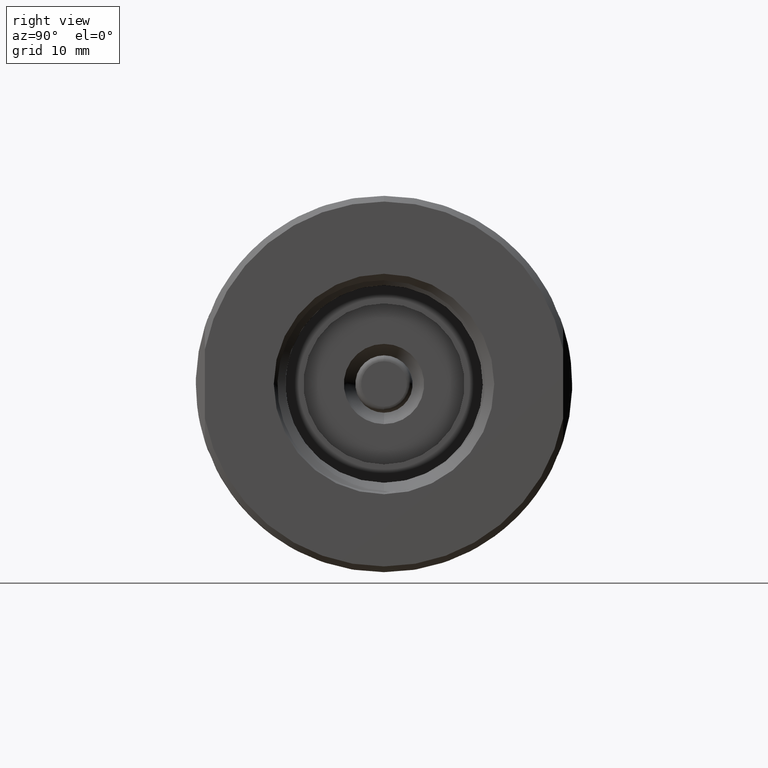
[diagram: clean part render]
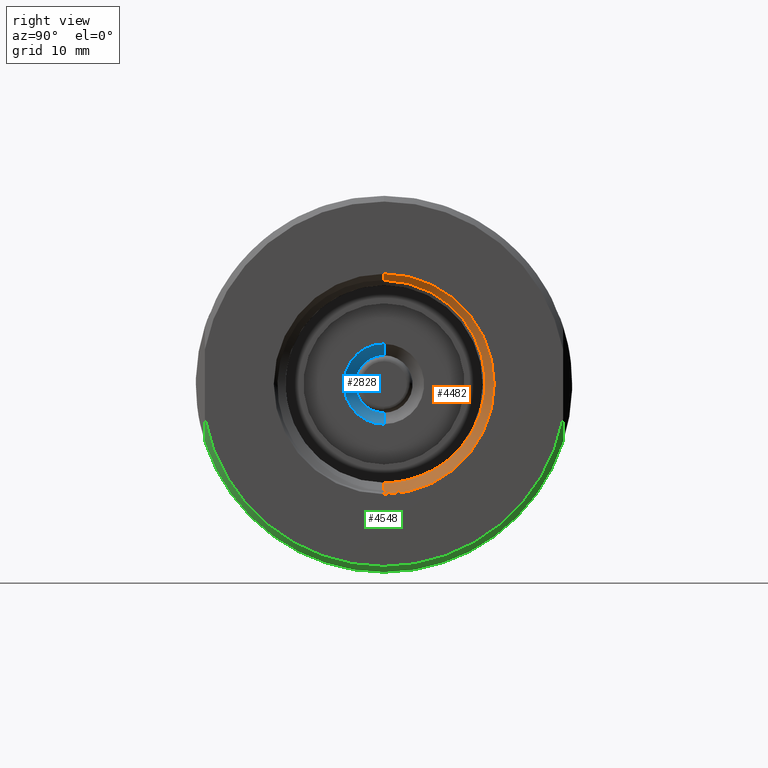
[diagram: same view with three faces highlighted in distinct colors, each labeled with its STEP entity id]
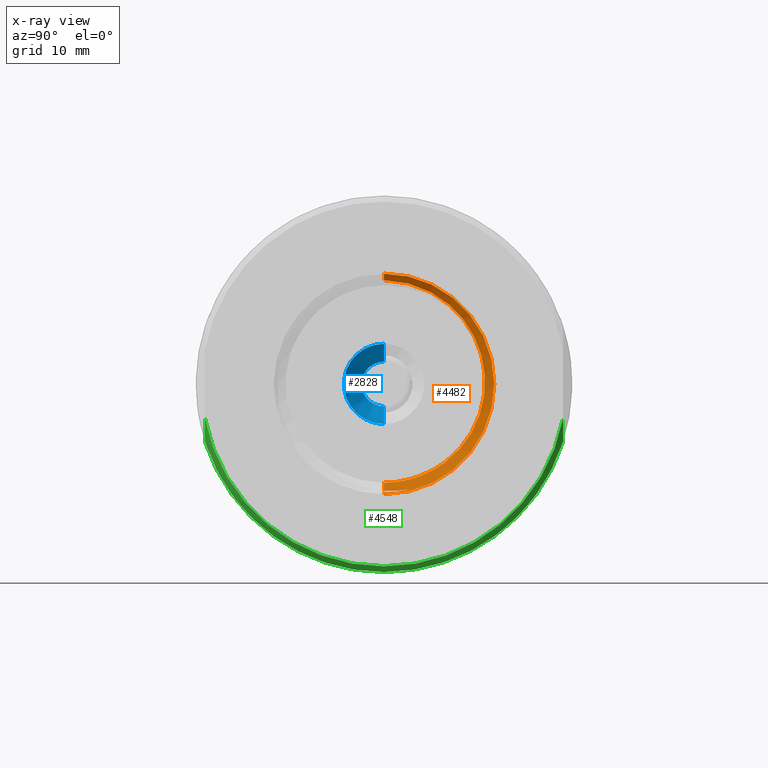
[diagram: x-ray of the same camera — body ghosted, the three highlighted faces saturated]
A machine part, right view with three faces highlighted in distinct colors.
The next image is the same camera in x-ray (body ghosted, the three faces saturated) — at least one of them is partly hidden behind the body in this view.
Their STEP definitions:

[orange] entity #4482 — the highlighted conical surface has half-angle 45 deg.
#44 = CARTESIAN_POINT ( 'NONE',  ( 1.304382642815901328, 0.06184354998518463986, -0.3716189419748357481 ) ) ;
#47 = CARTESIAN_POINT ( 'NONE',  ( 1.287077951368955642, 0.1569011873643701427, 0.3236528847657136332 ) ) ;
#167 = CARTESIAN_POINT ( 'NONE',  ( 1.285279556418134073, 0.2401296560682154579, 0.2653847520005125915 ) ) ;
#342 = CARTESIAN_POINT ( 'NONE',  ( 1.277308321455000728, 0.3176201860635732288, -0.1458059470798475643 ) ) ;
#554 = ORIENTED_EDGE ( 'NONE', *, *, #8855, .T. ) ;
#822 = CARTESIAN_POINT ( 'NONE',  ( 1.280577446555144938, 0.3517372571203437048, 0.03199722948202590039 ) ) ;
#872 = LINE ( 'NONE', #10712, #8130 ) ;
#882 = CARTESIAN_POINT ( 'NONE',  ( 1.306329117187498445, 0.09245632877379253434, -0.3668901671180790358 ) ) ;
#884 = CARTESIAN_POINT ( 'NONE',  ( 1.288542025941997515, 0.08046324323461337413, 0.3520627707701351472 ) ) ;
#947 = CARTESIAN_POINT ( 'NONE',  ( 1.282784095741233754, 0.3221861074435572458, 0.1499996002710555221 ) ) ;
#1058 = CARTESIAN_POINT ( 'NONE',  ( 1.287443394697124655, 0.1385489153749330793, 0.3323353530213062346 ) ) ;
#1183 = CARTESIAN_POINT ( 'NONE',  ( 1.277685603457377139, 0.3259258135036573467, -0.1271930119882950239 ) ) ;
#1438 = EDGE_CURVE ( 'NONE', #6696, #6943, #872, .T. ) ;
#1517 = EDGE_CURVE ( 'NONE', #8276, #3355, #8032, .T. ) ;
#1681 = VECTOR ( 'NONE', #2907, 39.37007874015748854 ) ;
#1690 = ORIENTED_EDGE ( 'NONE', *, *, #10036, .F. ) ;
#1900 = CARTESIAN_POINT ( 'NONE',  ( 1.312500000000000222, 4.709149644846310570E-17, 0.3845312500000003242 ) ) ;
#2015 = CARTESIAN_POINT ( 'NONE',  ( 1.272499999999999964, 0.1269585459712130604, -0.3202862935428833491 ) ) ;
#2251 = CARTESIAN_POINT ( 'NONE',  ( 1.312500000000000222, 0.0000000000000000000, 0.0000000000000000000 ) ) ;
#2309 = DIRECTION ( 'NONE',  ( -1.000000000000000000, -0.0000000000000000000, -0.0000000000000000000 ) ) ;
#2463 = EDGE_CURVE ( 'NONE', #9712, #8276, #6336, .T. ) ;
#2515 = EDGE_CURVE ( 'NONE', #7520, #9712, #5417, .T. ) ;
#2595 = B_SPLINE_CURVE_WITH_KNOTS ( 'NONE', 3,
 ( #10840, #3732, #10000, #44, #10956, #3556 ),
 .UNSPECIFIED., .F., .F.,
 ( 4, 2, 4 ),
 ( 0.01093648437375131267, 0.01211465202260034006, 0.01329281967144936745 ),
 .UNSPECIFIED. ) ;
#2606 = CARTESIAN_POINT ( 'NONE',  ( 1.282229728432893401, 0.3328988366051651715, 0.1215798709144235712 ) ) ;
#2851 = CARTESIAN_POINT ( 'NONE',  ( 1.289595712018401619, 0.02049901501150600686, 0.3616269620184022204 ) ) ;
#2906 = CARTESIAN_POINT ( 'NONE',  ( 1.275636831506381075, 0.2675798709584311652, -0.2222088372663019173 ) ) ;
#2907 = DIRECTION ( 'NONE',  ( 0.7071067811865516806, 8.659560562354879857E-17, 0.7071067811865431318 ) ) ;
#2982 = VECTOR ( 'NONE', #7918, 39.37007874015748854 ) ;
#3026 = CARTESIAN_POINT ( 'NONE',  ( 1.273270186898506351, 0.1647227870886077139, -0.3041549577535002657 ) ) ;
#3027 = CARTESIAN_POINT ( 'NONE',  ( 1.306329117187500000, 0.06225113146227941041, -0.3745018773888929009 ) ) ;
#3135 = CARTESIAN_POINT ( 'NONE',  ( 1.275100914353762827, 0.2466448716032853816, -0.2444814761463088848 ) ) ;
#3355 = VERTEX_POINT ( 'NONE', #5848 ) ;
#3556 = CARTESIAN_POINT ( 'NONE',  ( 1.306329117187498445, 0.09245632877379253434, -0.3668901671180790358 ) ) ;
#3673 = CARTESIAN_POINT ( 'NONE',  ( 1.280055096698166528, 0.3522281482293175281, 0.001622987952749292652 ) ) ;
#3732 = CARTESIAN_POINT ( 'NONE',  ( 1.301519632932547577, 0.01541558026784879513, -0.3735508829325477897 ) ) ;
#3760 = ORIENTED_EDGE ( 'NONE', *, *, #2515, .T. ) ;
#3795 = CARTESIAN_POINT ( 'NONE',  ( 1.284249674485615778, 0.2807742037666038915, 0.2202534804113193134 ) ) ;
#3851 = CARTESIAN_POINT ( 'NONE',  ( 1.278432984245897464, 0.3395704241186642824, -0.08903494850290376295 ) ) ;
#3892 = CONICAL_SURFACE ( 'NONE', #8482, 0.3845312500000003242, 0.7853981633974422838 ) ;
#4264 = VERTEX_POINT ( 'NONE', #1900 ) ;
#4353 = VERTEX_POINT ( 'NONE', #882 ) ;
#4440 = CARTESIAN_POINT ( 'NONE',  ( 1.279884145309096777, 0.3519595648555763345, -0.008517391885634318510 ) ) ;
#4482 = ADVANCED_FACE ( 'NONE', ( #5989 ), #3892, .F. ) ;
#4508 = CARTESIAN_POINT ( 'NONE',  ( 1.279349786774983677, 0.3493540093110704126, -0.03905227375530324202 ) ) ;
#4569 = CARTESIAN_POINT ( 'NONE',  ( 1.280935760731527928, 0.3496883693061695331, 0.05218449910440883799 ) ) ;
#5333 = CARTESIAN_POINT ( 'NONE',  ( 1.281488651837447312, 0.3439426771052971898, 0.08236882048632643283 ) ) ;
#5346 = CARTESIAN_POINT ( 'NONE',  ( 1.289934301395927907, 0.0000000000000000000, 0.3619655513959281756 ) ) ;
#5393 = CARTESIAN_POINT ( 'NONE',  ( 1.286352484540092878, 0.1919265343641341215, 0.3033362169203421277 ) ) ;
#5417 = B_SPLINE_CURVE_WITH_KNOTS ( 'NONE', 3,
 ( #11025, #2851, #9119, #884, #10130, #1058, #47, #5393, #5519, #167, #8991, #3795, #9053, #10781, #947, #2606, #8228, #9887, #5333, #4569, #822, #3673, #4440, #8172, #4508, #11812, #3851, #7680, #1183, #342, #10423, #11199, #6714, #2906, #10362, #3135, #10247, #5813, #9471, #3026, #5879, #2015 ),
 .UNSPECIFIED., .F., .F.,
 ( 4, 2, 2, 2, 2, 2, 2, 2, 2, 2, 2, 2, 2, 2, 2, 2, 2, 2, 2, 2, 4 ),
 ( 0.02455092494101071901, 0.02610590275252831771, 0.02766088056404591641, 0.02921585837556351511, 0.03077083618708111382, 0.03232581399859871252, 0.03388079181011630775, 0.03543576962163390992, 0.03621325852739271101, 0.03699074743315150515, 0.03854572524466910732, 0.03932321415042790841, 0.04010070305618670949, 0.04165568086770430473, 0.04243316977346310581, 0.04321065867922190690, 0.04476563649073950213, 0.04554312539649830321, 0.04632061430225710430, 0.04787559211377470647, 0.04943056992529230170 ),
 .UNSPECIFIED. ) ;
#5519 = CARTESIAN_POINT ( 'NONE',  ( 1.285991400804908480, 0.2086464212371900440, 0.2916628110145719766 ) ) ;
#5727 = CARTESIAN_POINT ( 'NONE',  ( 1.272499999999999964, 0.0000000000000000000, -0.3445312500000003997 ) ) ;
#5813 = CARTESIAN_POINT ( 'NONE',  ( 1.274385850623438010, 0.2160057076829934863, -0.2715927350443603228 ) ) ;
#5814 = DIRECTION ( 'NONE',  ( 0.0000000000000000000, 0.0000000000000000000, 1.000000000000000000 ) ) ;
#5848 = CARTESIAN_POINT ( 'NONE',  ( 1.300596552073818080, 4.563374450830144362E-17, -0.3726278020738178487 ) ) ;
#5879 = CARTESIAN_POINT ( 'NONE',  ( 1.272885770179390752, 0.1461959647625226399, -0.3130757294868330431 ) ) ;
#5989 = FACE_OUTER_BOUND ( 'NONE', #7777, .T. ) ;
#6238 = DIRECTION ( 'NONE',  ( 0.0000000000000000000, 0.0000000000000000000, 1.000000000000000000 ) ) ;
#6248 = CARTESIAN_POINT ( 'NONE',  ( 1.306329117187500222, 4.633578126003893285E-17, -0.3783603671875002128 ) ) ;
#6336 = CIRCLE ( 'NONE', #6722, 0.3445312500000003997 ) ;
#6638 = B_SPLINE_CURVE_WITH_KNOTS ( 'NONE', 3,
 ( #7562, #3027, #9586, #8404 ),
 .UNSPECIFIED., .F., .F.,
 ( 4, 4 ),
 ( 2.117490088377129711E-15, 0.002373086526508388916 ),
 .UNSPECIFIED. ) ;
#6696 = VERTEX_POINT ( 'NONE', #6248 ) ;
#6714 = CARTESIAN_POINT ( 'NONE',  ( 1.276181650256496214, 0.2867388275639588535, -0.1986044004660146856 ) ) ;
#6722 = AXIS2_PLACEMENT_3D ( 'NONE', #10959, #9946, #6238 ) ;
#6943 = VERTEX_POINT ( 'NONE', #10946 ) ;
#7192 = CARTESIAN_POINT ( 'NONE',  ( 1.312500000000000222, 0.0000000000000000000, -0.3845312500000003242 ) ) ;
#7398 = CIRCLE ( 'NONE', #9858, 0.3845312500000003242 ) ;
#7520 = VERTEX_POINT ( 'NONE', #5346 ) ;
#7562 = CARTESIAN_POINT ( 'NONE',  ( 1.306329117187498445, 0.09245632877379253434, -0.3668901671180790358 ) ) ;
#7680 = CARTESIAN_POINT ( 'NONE',  ( 1.277873208228788471, 0.3296514127123258420, -0.1177523029987971731 ) ) ;
#7777 = EDGE_LOOP ( 'NONE', ( #8426, #3760, #10122, #9305, #554, #9045, #9443, #1690 ) ) ;
#7918 = DIRECTION ( 'NONE',  ( 0.7071067811865516806, 0.0000000000000000000, -0.7071067811865431318 ) ) ;
#8032 = LINE ( 'NONE', #7192, #2982 ) ;
#8130 = VECTOR ( 'NONE', #11734, 39.37007874015748854 ) ;
#8172 = CARTESIAN_POINT ( 'NONE',  ( 1.279530946357690713, 0.3505259330648293203, -0.02883026117080057793 ) ) ;
#8173 = LINE ( 'NONE', #11080, #1681 ) ;
#8228 = CARTESIAN_POINT ( 'NONE',  ( 1.282044793446151631, 0.3360668240152973052, 0.1119482197739550544 ) ) ;
#8276 = VERTEX_POINT ( 'NONE', #5727 ) ;
#8404 = CARTESIAN_POINT ( 'NONE',  ( 1.306329117187500222, 4.633578126003893285E-17, -0.3783603671875002128 ) ) ;
#8426 = ORIENTED_EDGE ( 'NONE', *, *, #9896, .F. ) ;
#8482 = AXIS2_PLACEMENT_3D ( 'NONE', #2251, #11502, #10481 ) ;
#8523 = CARTESIAN_POINT ( 'NONE',  ( 1.312500000000000222, 0.0000000000000000000, 0.0000000000000000000 ) ) ;
#8855 = EDGE_CURVE ( 'NONE', #3355, #4353, #2595, .T. ) ;
#8991 = CARTESIAN_POINT ( 'NONE',  ( 1.284944759342732556, 0.2545453349184113589, 0.2510939977364685105 ) ) ;
#9045 = ORIENTED_EDGE ( 'NONE', *, *, #9966, .T. ) ;
#9053 = CARTESIAN_POINT ( 'NONE',  ( 1.283889961076115638, 0.2926266024515022379, 0.2036411749115093206 ) ) ;
#9119 = CARTESIAN_POINT ( 'NONE',  ( 1.289249488695774604, 0.04068672300993403379, 0.3595522263509309813 ) ) ;
#9305 = ORIENTED_EDGE ( 'NONE', *, *, #1517, .T. ) ;
#9443 = ORIENTED_EDGE ( 'NONE', *, *, #1438, .T. ) ;
#9471 = CARTESIAN_POINT ( 'NONE',  ( 1.274019045037210418, 0.1995677568363079801, -0.2834330074546084766 ) ) ;
#9586 = CARTESIAN_POINT ( 'NONE',  ( 1.306329117187500000, 0.03112291469431988783, -0.3783603671875002128 ) ) ;
#9712 = VERTEX_POINT ( 'NONE', #10378 ) ;
#9858 = AXIS2_PLACEMENT_3D ( 'NONE', #8523, #2309, #5814 ) ;
#9887 = CARTESIAN_POINT ( 'NONE',  ( 1.281674633214922032, 0.3415850148446608059, 0.09236340739831321034 ) ) ;
#9896 = EDGE_CURVE ( 'NONE', #7520, #4264, #8173, .T. ) ;
#9946 = DIRECTION ( 'NONE',  ( -1.000000000000000000, -0.0000000000000000000, -0.0000000000000000000 ) ) ;
#9966 = EDGE_CURVE ( 'NONE', #4353, #6696, #6638, .T. ) ;
#10000 = CARTESIAN_POINT ( 'NONE',  ( 1.302469797975293941, 0.03099932599612178000, -0.3735343635153598463 ) ) ;
#10036 = EDGE_CURVE ( 'NONE', #4264, #6943, #7398, .T. ) ;
#10122 = ORIENTED_EDGE ( 'NONE', *, *, #2463, .T. ) ;
#10130 = CARTESIAN_POINT ( 'NONE',  ( 1.288179903020098216, 0.1000982435388808600, 0.3466309060654319540 ) ) ;
#10247 = CARTESIAN_POINT ( 'NONE',  ( 1.274924647590123028, 0.2391561038309883147, -0.2515687199196058876 ) ) ;
#10362 = CARTESIAN_POINT ( 'NONE',  ( 1.275456981108744170, 0.2608414048871526836, -0.2298129186828532788 ) ) ;
#10378 = CARTESIAN_POINT ( 'NONE',  ( 1.272499999999999964, 0.1269585459712130604, -0.3202862935428833491 ) ) ;
#10423 = CARTESIAN_POINT ( 'NONE',  ( 1.277117704470432713, 0.3130137676441808181, -0.1550219200804668906 ) ) ;
#10481 = DIRECTION ( 'NONE',  ( 0.0000000000000000000, 0.0000000000000000000, -1.000000000000000000 ) ) ;
#10712 = CARTESIAN_POINT ( 'NONE',  ( 1.312500000000000222, 0.0000000000000000000, -0.3845312500000003242 ) ) ;
#10781 = CARTESIAN_POINT ( 'NONE',  ( 1.283153087215328059, 0.3134417992241896878, 0.1683160716923826350 ) ) ;
#10840 = CARTESIAN_POINT ( 'NONE',  ( 1.300596552073818080, 4.563374450830144362E-17, -0.3726278020738178487 ) ) ;
#10946 = CARTESIAN_POINT ( 'NONE',  ( 1.312500000000000222, 0.0000000000000000000, -0.3845312500000003242 ) ) ;
#10956 = CARTESIAN_POINT ( 'NONE',  ( 1.305350354312290628, 0.07718889598561119725, -0.3697281982180168347 ) ) ;
#10959 = CARTESIAN_POINT ( 'NONE',  ( 1.272499999999999964, 0.0000000000000000000, 0.0000000000000000000 ) ) ;
#11025 = CARTESIAN_POINT ( 'NONE',  ( 1.289934301395927907, 0.0000000000000000000, 0.3619655513959281756 ) ) ;
#11080 = CARTESIAN_POINT ( 'NONE',  ( 1.312500000000000222, 4.709149644846310570E-17, 0.3845312500000003242 ) ) ;
#11199 = CARTESIAN_POINT ( 'NONE',  ( 1.276551840293477014, 0.2981109147186140063, -0.1818178800172128018 ) ) ;
#11502 = DIRECTION ( 'NONE',  ( 1.000000000000000000, 0.0000000000000000000, 0.0000000000000000000 ) ) ;
#11734 = DIRECTION ( 'NONE',  ( 0.7071067811865516806, 0.0000000000000000000, -0.7071067811865431318 ) ) ;
#11812 = CARTESIAN_POINT ( 'NONE',  ( 1.278802133679145303, 0.3445157304189890857, -0.06936611713288864944 ) ) ;

[blue] entity #2828 — the highlighted conical surface has half-angle 45 deg.
#173 = DIRECTION ( 'NONE',  ( 0.7071067811865461294, 0.0000000000000000000, -0.7071067811865489050 ) ) ;
#298 = AXIS2_PLACEMENT_3D ( 'NONE', #6951, #5202, #1539 ) ;
#340 = EDGE_CURVE ( 'NONE', #9020, #3553, #4678, .T. ) ;
#512 = CARTESIAN_POINT ( 'NONE',  ( 0.3755000000000002780, 9.552245033349355435E-18, -0.07799999999999999989 ) ) ;
#953 = CARTESIAN_POINT ( 'NONE',  ( 0.3755000000000002780, 0.0000000000000000000, -0.07799999999999999989 ) ) ;
#1539 = DIRECTION ( 'NONE',  ( 0.0000000000000000000, 0.0000000000000000000, 1.000000000000000000 ) ) ;
#1615 = DIRECTION ( 'NONE',  ( 0.7071067811865461294, 8.659560562354950115E-17, 0.7071067811865489050 ) ) ;
#2524 = ORIENTED_EDGE ( 'NONE', *, *, #5876, .T. ) ;
#2589 = FACE_OUTER_BOUND ( 'NONE', #2629, .T. ) ;
#2629 = EDGE_LOOP ( 'NONE', ( #9863, #2524, #4374, #7664 ) ) ;
#2828 = ADVANCED_FACE ( 'NONE', ( #2589 ), #2928, .F. ) ;
#2928 = CONICAL_SURFACE ( 'NONE', #9404, 0.07799999999999999989, 0.7853981633974502774 ) ;
#3553 = VERTEX_POINT ( 'NONE', #3697 ) ;
#3697 = CARTESIAN_POINT ( 'NONE',  ( 0.3755000000000002780, 0.0000000000000000000, 0.07799999999999999989 ) ) ;
#4283 = CARTESIAN_POINT ( 'NONE',  ( 0.4375000000000000555, 1.714505518806294700E-17, 0.1400000000000000133 ) ) ;
#4374 = ORIENTED_EDGE ( 'NONE', *, *, #4553, .F. ) ;
#4481 = AXIS2_PLACEMENT_3D ( 'NONE', #11692, #11757, #10137 ) ;
#4553 = EDGE_CURVE ( 'NONE', #4636, #6757, #9257, .T. ) ;
#4636 = VERTEX_POINT ( 'NONE', #11054 ) ;
#4678 = CIRCLE ( 'NONE', #4481, 0.07799999999999999989 ) ;
#5202 = DIRECTION ( 'NONE',  ( -1.000000000000000000, -0.0000000000000000000, -0.0000000000000000000 ) ) ;
#5288 = VECTOR ( 'NONE', #173, 39.37007874015748143 ) ;
#5321 = CARTESIAN_POINT ( 'NONE',  ( 0.3755000000000002780, 0.0000000000000000000, 0.0000000000000000000 ) ) ;
#5876 = EDGE_CURVE ( 'NONE', #3553, #6757, #10848, .T. ) ;
#6757 = VERTEX_POINT ( 'NONE', #4283 ) ;
#6815 = VECTOR ( 'NONE', #1615, 39.37007874015748143 ) ;
#6951 = CARTESIAN_POINT ( 'NONE',  ( 0.4375000000000000555, 0.0000000000000000000, 0.0000000000000000000 ) ) ;
#7664 = ORIENTED_EDGE ( 'NONE', *, *, #10838, .F. ) ;
#7880 = CARTESIAN_POINT ( 'NONE',  ( 0.3755000000000002780, 9.552245033349355435E-18, 0.07799999999999999989 ) ) ;
#8978 = DIRECTION ( 'NONE',  ( 1.000000000000000000, 0.0000000000000000000, 0.0000000000000000000 ) ) ;
#9020 = VERTEX_POINT ( 'NONE', #512 ) ;
#9257 = CIRCLE ( 'NONE', #298, 0.1400000000000000133 ) ;
#9404 = AXIS2_PLACEMENT_3D ( 'NONE', #5321, #8978, #10827 ) ;
#9863 = ORIENTED_EDGE ( 'NONE', *, *, #340, .T. ) ;
#10137 = DIRECTION ( 'NONE',  ( 0.0000000000000000000, 0.0000000000000000000, 1.000000000000000000 ) ) ;
#10827 = DIRECTION ( 'NONE',  ( 0.0000000000000000000, 0.0000000000000000000, -1.000000000000000000 ) ) ;
#10838 = EDGE_CURVE ( 'NONE', #9020, #4636, #11085, .T. ) ;
#10848 = LINE ( 'NONE', #7880, #6815 ) ;
#11054 = CARTESIAN_POINT ( 'NONE',  ( 0.4375000000000000555, 0.0000000000000000000, -0.1400000000000000133 ) ) ;
#11085 = LINE ( 'NONE', #953, #5288 ) ;
#11692 = CARTESIAN_POINT ( 'NONE',  ( 0.3755000000000002780, 0.0000000000000000000, 0.0000000000000000000 ) ) ;
#11757 = DIRECTION ( 'NONE',  ( -1.000000000000000000, -0.0000000000000000000, -0.0000000000000000000 ) ) ;

[green] entity #4548 — the highlighted conical surface has half-angle 45 deg.
#249 = CARTESIAN_POINT ( 'NONE',  ( 1.312500000000000000, 0.6248000000000000220, -0.1204269488113021841 ) ) ;
#317 = CIRCLE ( 'NONE', #4307, 0.6362999999999999767 ) ;
#528 = CARTESIAN_POINT ( 'NONE',  ( 1.292499999999999982, -0.6248000000000000220, -0.2008846684045352271 ) ) ;
#767 = ORIENTED_EDGE ( 'NONE', *, *, #4203, .F. ) ;
#954 = VERTEX_POINT ( 'NONE', #7268 ) ;
#1028 = CARTESIAN_POINT ( 'NONE',  ( 1.292499999999999982, 0.0000000000000000000, 0.0000000000000000000 ) ) ;
#1207 = DIRECTION ( 'NONE',  ( 0.0000000000000000000, 0.0000000000000000000, 1.000000000000000000 ) ) ;
#1358 = DIRECTION ( 'NONE',  ( 0.0000000000000000000, 0.0000000000000000000, 1.000000000000000000 ) ) ;
#1697 = CIRCLE ( 'NONE', #11607, 0.6562999999999999945 ) ;
#1852 = CIRCLE ( 'NONE', #2229, 0.6562999999999999945 ) ;
#1874 = CARTESIAN_POINT ( 'NONE',  ( 1.300568673813839338, 0.6248000000000000220, -0.1745239178998776175 ) ) ;
#1986 = DIRECTION ( 'NONE',  ( -1.000000000000000000, -0.0000000000000000000, -0.0000000000000000000 ) ) ;
#2229 = AXIS2_PLACEMENT_3D ( 'NONE', #1028, #8372, #1207 ) ;
#2259 = VERTEX_POINT ( 'NONE', #5968 ) ;
#2322 = CARTESIAN_POINT ( 'NONE',  ( 1.307341106394361407, -0.6248000000000000220, -0.1476850005486362583 ) ) ;
#2843 = B_SPLINE_CURVE_WITH_KNOTS ( 'NONE', 3,
 ( #10553, #10612, #2322, #5945 ),
 .UNSPECIFIED., .F., .F.,
 ( 4, 4 ),
 ( 0.03460847523141299953, 0.03670624924004842193 ),
 .UNSPECIFIED. ) ;
#3315 = FACE_OUTER_BOUND ( 'NONE', #3585, .T. ) ;
#3321 = DIRECTION ( 'NONE',  ( -1.000000000000000000, -0.0000000000000000000, -0.0000000000000000000 ) ) ;
#3517 = CARTESIAN_POINT ( 'NONE',  ( 1.292499999999999982, 8.037356942804079914E-17, -0.6562999999999999945 ) ) ;
#3546 = DIRECTION ( 'NONE',  ( 0.0000000000000000000, 0.0000000000000000000, 1.000000000000000000 ) ) ;
#3585 = EDGE_LOOP ( 'NONE', ( #11782, #5541, #767, #4591, #9726 ) ) ;
#3649 = CARTESIAN_POINT ( 'NONE',  ( 1.292499999999999982, 0.6248000000000000220, -0.2008846684045352826 ) ) ;
#3722 = AXIS2_PLACEMENT_3D ( 'NONE', #8689, #7802, #1358 ) ;
#4094 = CONICAL_SURFACE ( 'NONE', #3722, 0.6562999999999999945, 0.7853981633974482790 ) ;
#4157 = VERTEX_POINT ( 'NONE', #528 ) ;
#4203 = EDGE_CURVE ( 'NONE', #4157, #954, #2843, .T. ) ;
#4307 = AXIS2_PLACEMENT_3D ( 'NONE', #11230, #1986, #10331 ) ;
#4548 = ADVANCED_FACE ( 'NONE', ( #3315 ), #4094, .T. ) ;
#4591 = ORIENTED_EDGE ( 'NONE', *, *, #11071, .F. ) ;
#5541 = ORIENTED_EDGE ( 'NONE', *, *, #7343, .T. ) ;
#5945 = CARTESIAN_POINT ( 'NONE',  ( 1.312500000000000000, -0.6248000000000000220, -0.1204269488113022119 ) ) ;
#5968 = CARTESIAN_POINT ( 'NONE',  ( 1.312500000000000000, 0.6248000000000000220, -0.1204269488113021841 ) ) ;
#6333 = VERTEX_POINT ( 'NONE', #3517 ) ;
#6444 = B_SPLINE_CURVE_WITH_KNOTS ( 'NONE', 3,
 ( #249, #8253, #1874, #3649 ),
 .UNSPECIFIED., .F., .F.,
 ( 4, 4 ),
 ( 0.04285482118790596290, 0.04496566221112779232 ),
 .UNSPECIFIED. ) ;
#7074 = CARTESIAN_POINT ( 'NONE',  ( 1.292499999999999982, 0.0000000000000000000, 0.0000000000000000000 ) ) ;
#7194 = EDGE_CURVE ( 'NONE', #7868, #6333, #1852, .T. ) ;
#7268 = CARTESIAN_POINT ( 'NONE',  ( 1.312500000000000000, -0.6248000000000000220, -0.1204269488113022119 ) ) ;
#7343 = EDGE_CURVE ( 'NONE', #2259, #954, #317, .T. ) ;
#7802 = DIRECTION ( 'NONE',  ( -1.000000000000000000, -0.0000000000000000000, -0.0000000000000000000 ) ) ;
#7868 = VERTEX_POINT ( 'NONE', #10126 ) ;
#8253 = CARTESIAN_POINT ( 'NONE',  ( 1.307331434661144653, 0.6248000000000000220, -0.1477361030959208343 ) ) ;
#8372 = DIRECTION ( 'NONE',  ( -1.000000000000000000, -0.0000000000000000000, -0.0000000000000000000 ) ) ;
#8689 = CARTESIAN_POINT ( 'NONE',  ( 1.292499999999999982, 0.0000000000000000000, 0.0000000000000000000 ) ) ;
#9161 = EDGE_CURVE ( 'NONE', #2259, #7868, #6444, .T. ) ;
#9726 = ORIENTED_EDGE ( 'NONE', *, *, #7194, .F. ) ;
#10126 = CARTESIAN_POINT ( 'NONE',  ( 1.292499999999999982, 0.6248000000000000220, -0.2008846684045352826 ) ) ;
#10331 = DIRECTION ( 'NONE',  ( 0.0000000000000000000, 0.0000000000000000000, 1.000000000000000000 ) ) ;
#10553 = CARTESIAN_POINT ( 'NONE',  ( 1.292499999999999982, -0.6248000000000000220, -0.2008846684045352271 ) ) ;
#10612 = CARTESIAN_POINT ( 'NONE',  ( 1.300554553722835571, -0.6248000000000000220, -0.1745700489252071386 ) ) ;
#11071 = EDGE_CURVE ( 'NONE', #6333, #4157, #1697, .T. ) ;
#11230 = CARTESIAN_POINT ( 'NONE',  ( 1.312500000000000000, 0.0000000000000000000, 0.0000000000000000000 ) ) ;
#11607 = AXIS2_PLACEMENT_3D ( 'NONE', #7074, #3321, #3546 ) ;
#11782 = ORIENTED_EDGE ( 'NONE', *, *, #9161, .F. ) ;